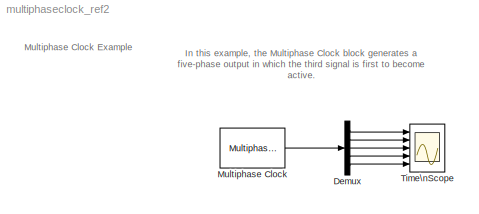
MODEL multiphaseclock_ref2
KIND model
CONFIG AbsTol = auto
CONFIG FixedStep = auto
CONFIG MaxStep = auto
CONFIG PostLoadFcn = set_param(gcs,'SimulationCommand','Update')
CONFIG RelTol = 1e-3
CONFIG Solver = FixedStepDiscrete
CONFIG SolverMode = Auto
CONFIG StartTime = 0.0
CONFIG StopTime = 0.08
BLOCK [Demux] Demux
  BusSelectionMode = off
  Outputs = 5
  Ports = [1, 5, 0, 0, 0]
BLOCK [Reference] Multiphase Clock  REF=dspswit3/Multiphase Clock
  ActiveLevel = High (1)
  ClkFreq = 100
  DutyCycle = 1
  NumPhases = 5
  Ports = [0, 1, 0, 0, 0]
  SourceBlock = dspswit3/Multiphase Clock
  SourceType = Multiphase Clock
  StartPhase = 3
BLOCK [Scope] Time\nScope
  DataFormat = Structure
  Decimation = 1
  Floating = off
  Grid = on
  LimitMaxRows = on
  MaxRows = 5000
  NumInputPorts = 5
  Ports = [5, 0, 0, 0, 0]
  SampleInput = off
  SampleTime = 0
  SaveName = ScopeData
  SaveToWorkspace = off
  TickLabels = OneTimeTick
  TimeRange = 0.08
  YMax = 1.2~1.2~1.2~1.2~1.2
  YMin = -0.2~-0.2~-0.2~-0.2~-0.2
  ZoomMode = on
LINE Demux:1 -> Time\nScope:1
LINE Demux:2 -> Time\nScope:2
LINE Demux:3 -> Time\nScope:3
LINE Demux:4 -> Time\nScope:4
LINE Demux:5 -> Time\nScope:5
LINE Multiphase Clock:1 -> Demux:1
